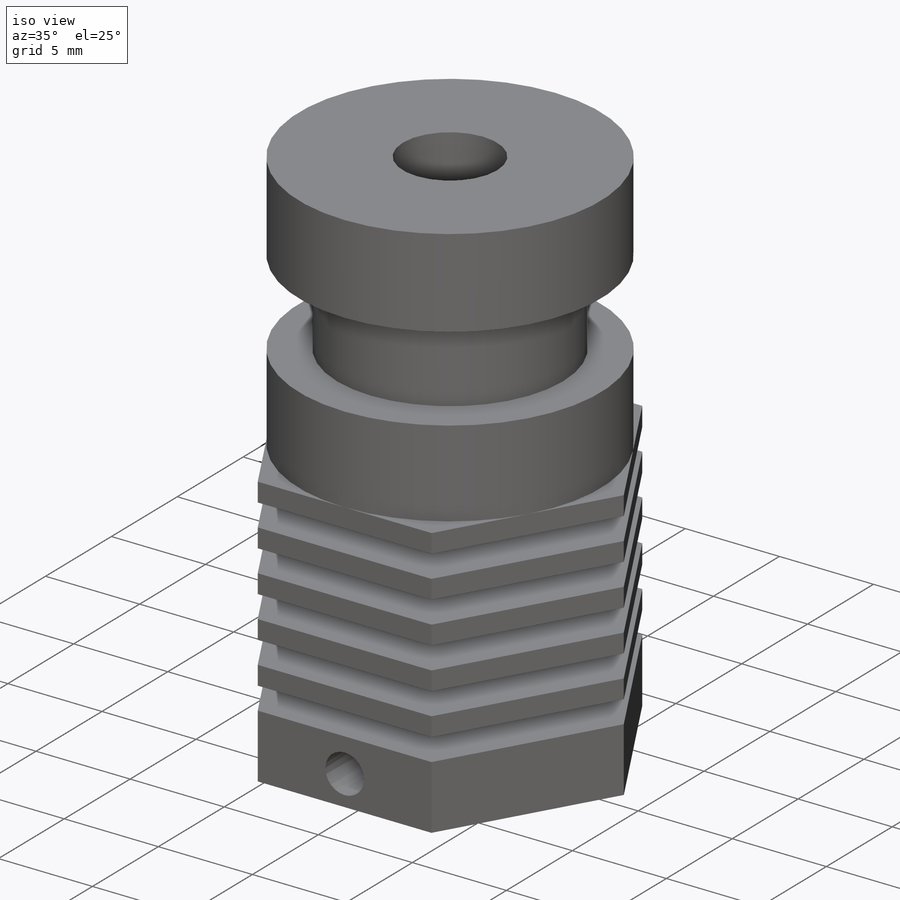
[diagram: iso view]
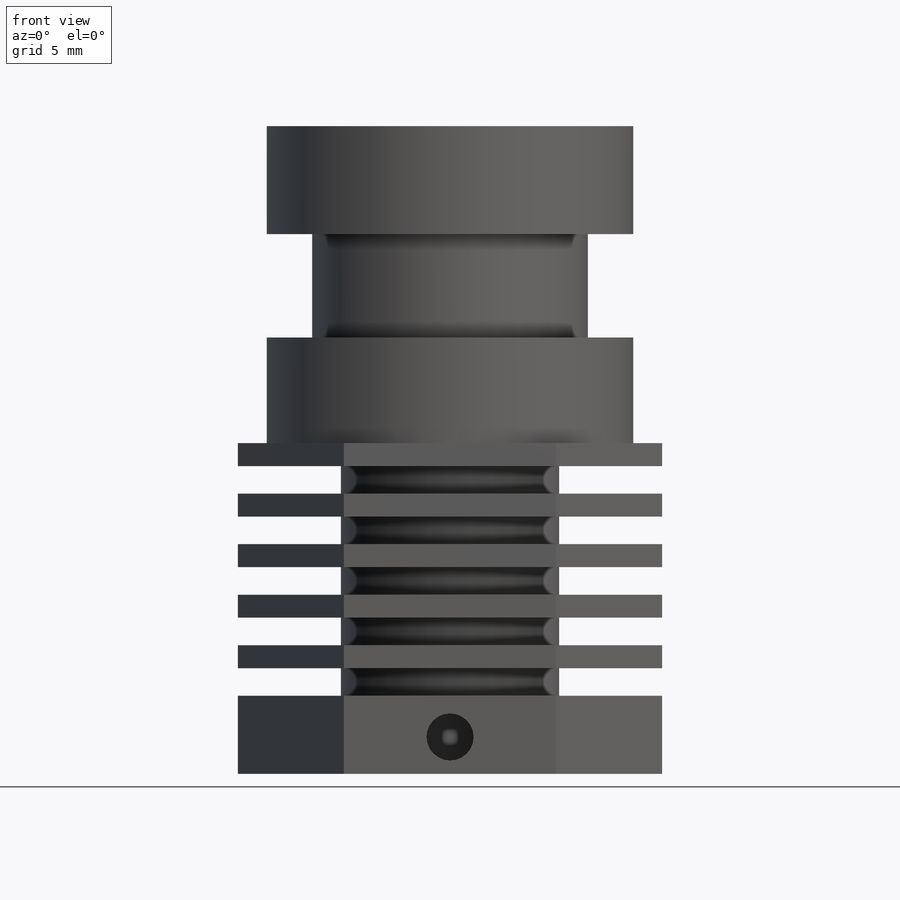
[diagram: front view]
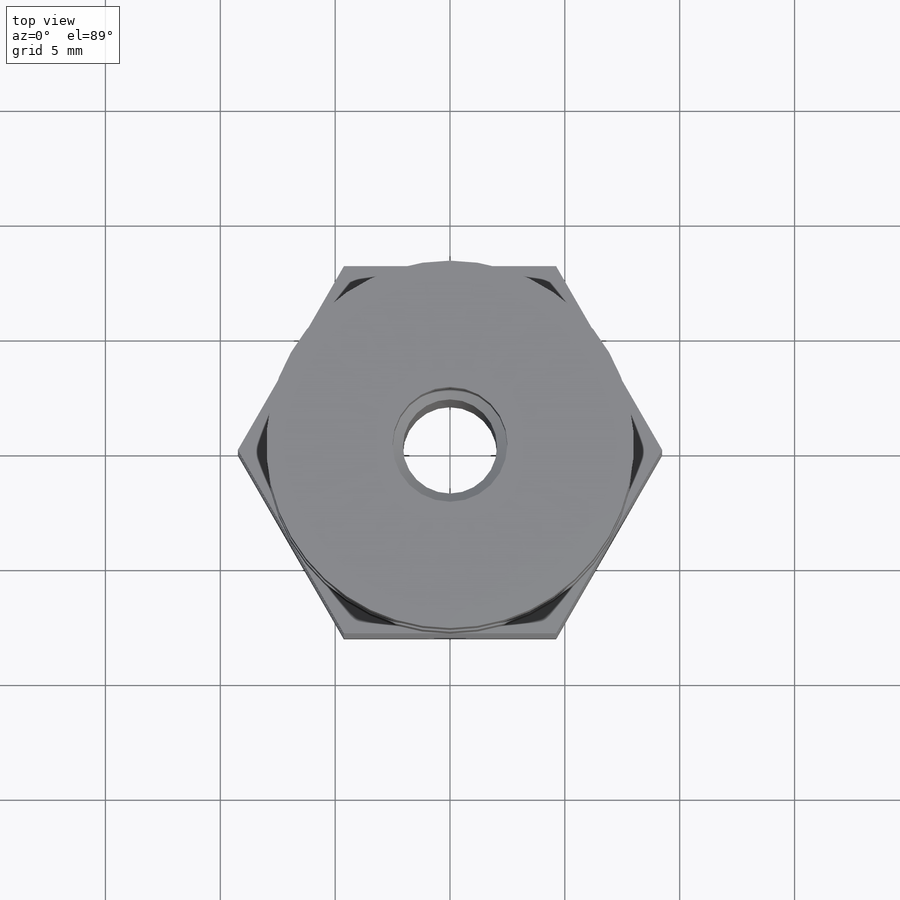
[diagram: top view]
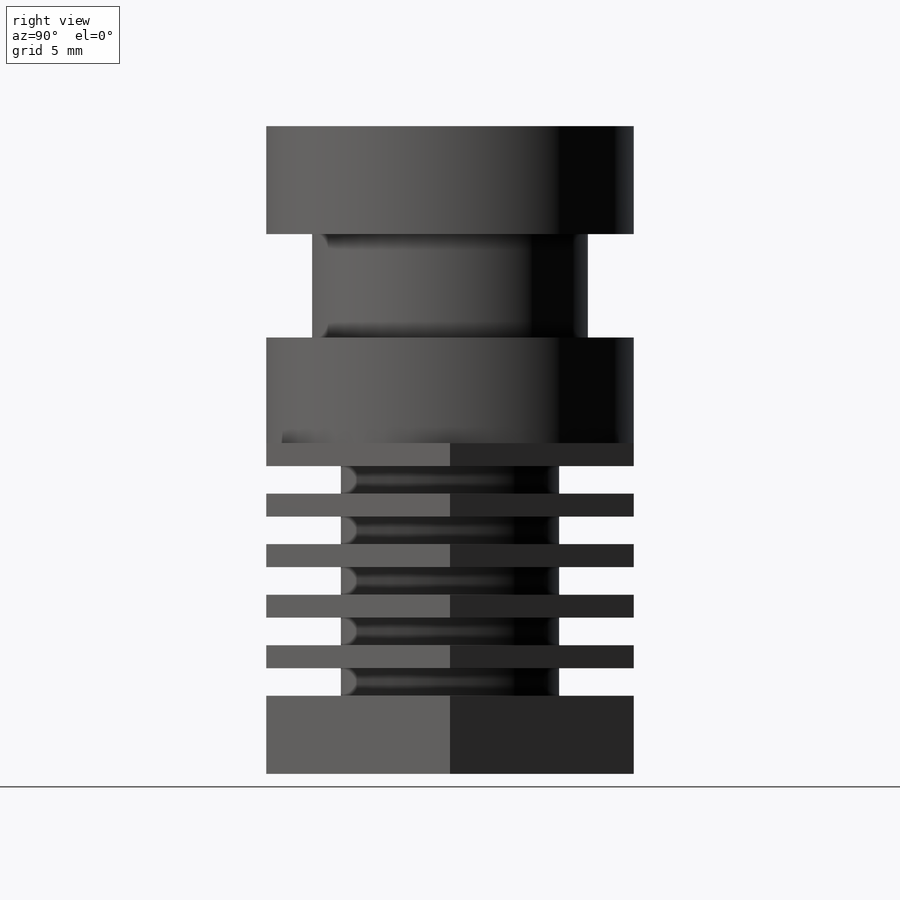
[diagram: right view]
SOLIDWORKS PART (.sldprt)
format: sldprt  version: not decoded by parser v0  size: 289,792 bytes
history: native  units: mm
features: sketch x6, hole x2, thread x2, material x1, revolve x1, cut_extrude x1 (+11 scaffold rows collapsed)
feature tree (24):
  scaffold x11  (default folders/planes/origin — collapsed)
  material  "6061-T6 (SS)"
  sketch  "Sketch1"  dims[D1=1.2mm D2=1.0mm D3=4.1mm D4=6.0mm D5=3.2mm D6=3.4mm D7=4.6mm D8=4.7mm D9=4.5mm D10=16.0mm D11=12.0mm D12=9.5mm D13=~28.615539mm]
  revolve  "Revolve1"  Angle=360deg
  sketch  "Sketch2"  dims[D1=16.0mm]
  cut_extrude  "Cut-Extrude1"  [1 undecoded]
  hole  "M6x1.0 Tapped Hole1"  Diameter=5mm Depth=5mm
  sketch  "Sketch4"
  sketch  "Sketch3"  dims[hole-wizard template sketch: 47 standard entries collapsed; hole parameters kept: c15.Tap Drill Depth=5.0mm c15.D3=~14.816244mm c15.Drill Angle=118.0deg]
  thread  "Hole Thread1"  Diameter=4.5mm  [1 undecoded]
  hole  "M2.5x0.45 Tapped Hole1"  Diameter=2.05mm Depth=9mm
  sketch  "Sketch6"  dims[D1=1.6mm]
  sketch  "Sketch5"  dims[hole-wizard template sketch: 47 standard entries collapsed; hole parameters kept: c15.Tap Drill Depth=9.0mm c15.D3=~14.816244mm c15.Drill Angle=118.0deg]
  thread  "Hole Thread2"  Diameter=5.180536mm  [1 undecoded]
decode coverage: 10 of 12 modeling features carry decoded parameters
note: ~ marks probable driven/reference dimensions
note: 3 parameter values undecoded
note: suppression state not decoded; provenance and decode notes live in map.json
